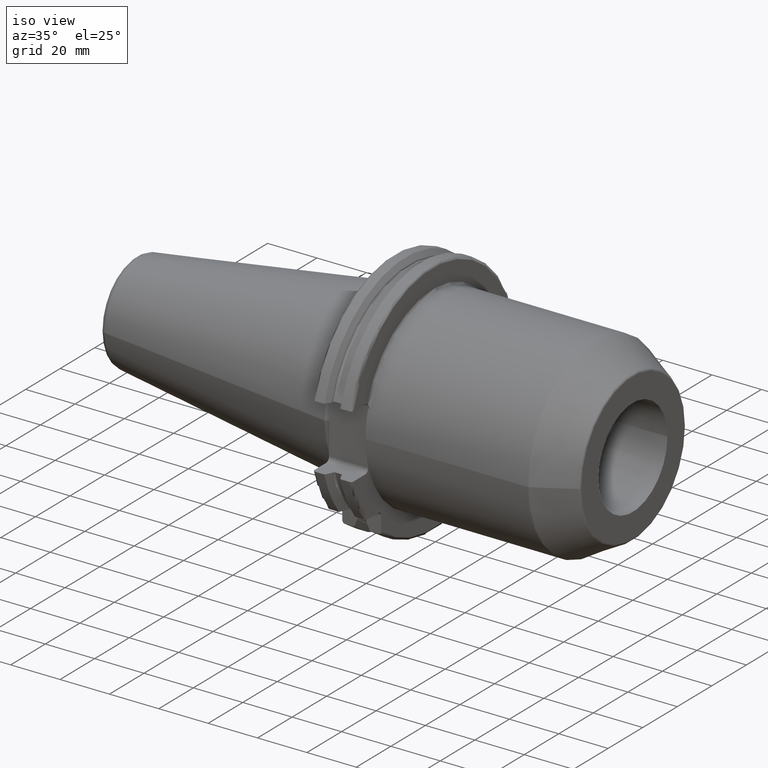
[diagram: clean part render]
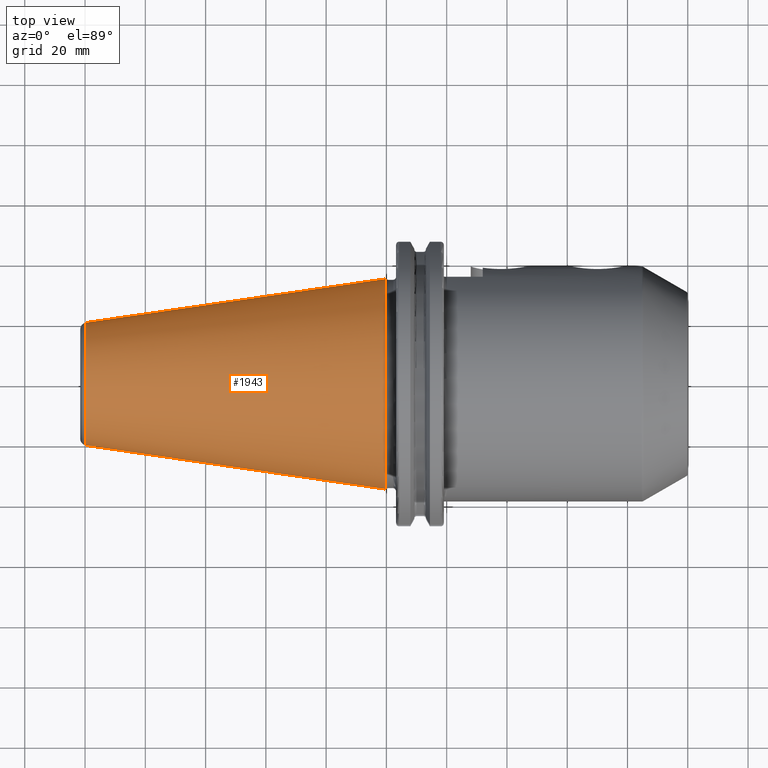
[diagram: tour spotlight — one face highlighted and labeled with its STEP entity id]
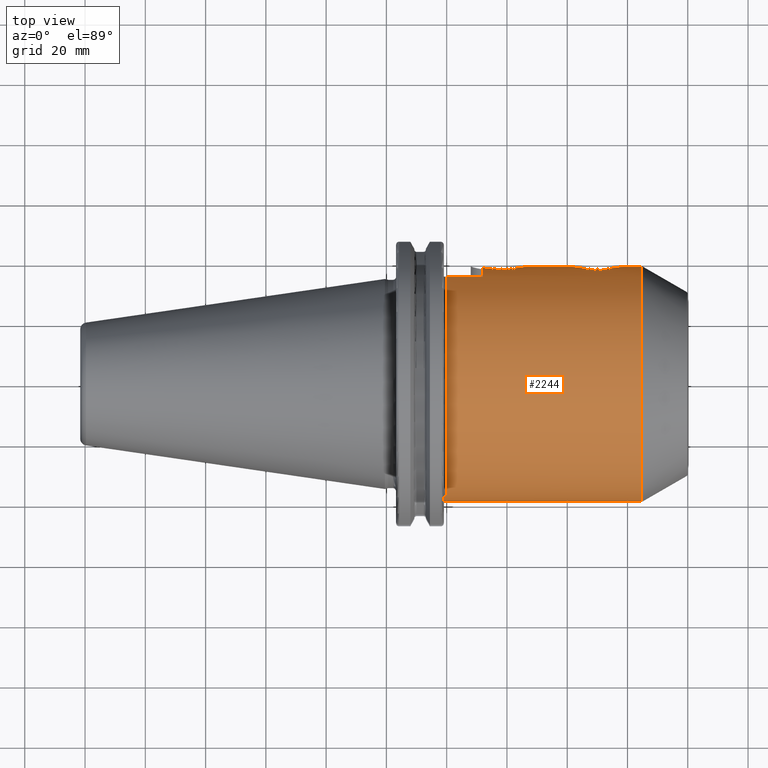
[diagram: tour spotlight — one face highlighted and labeled with its STEP entity id]
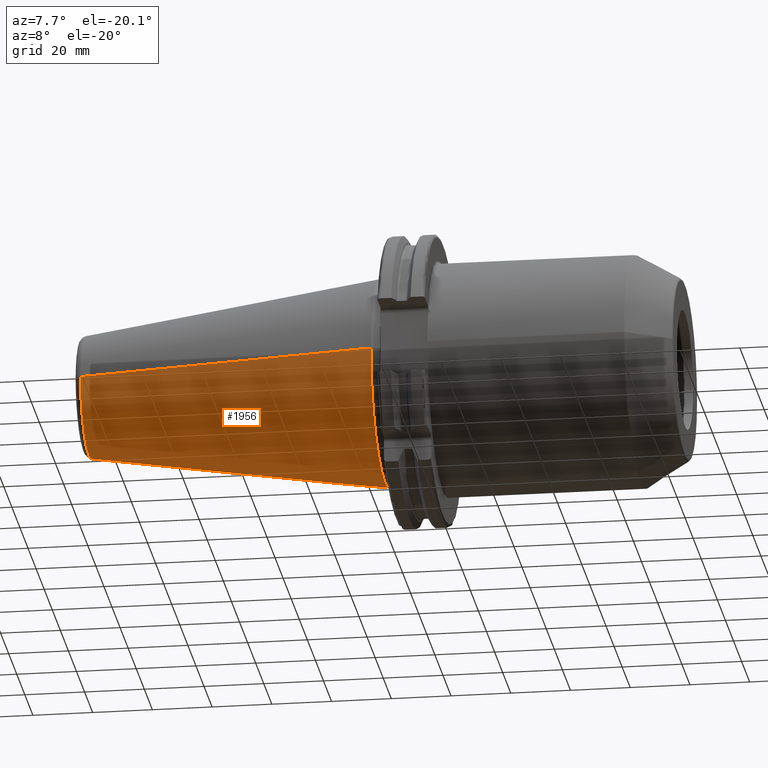
[diagram: tour spotlight — one face highlighted and labeled with its STEP entity id]
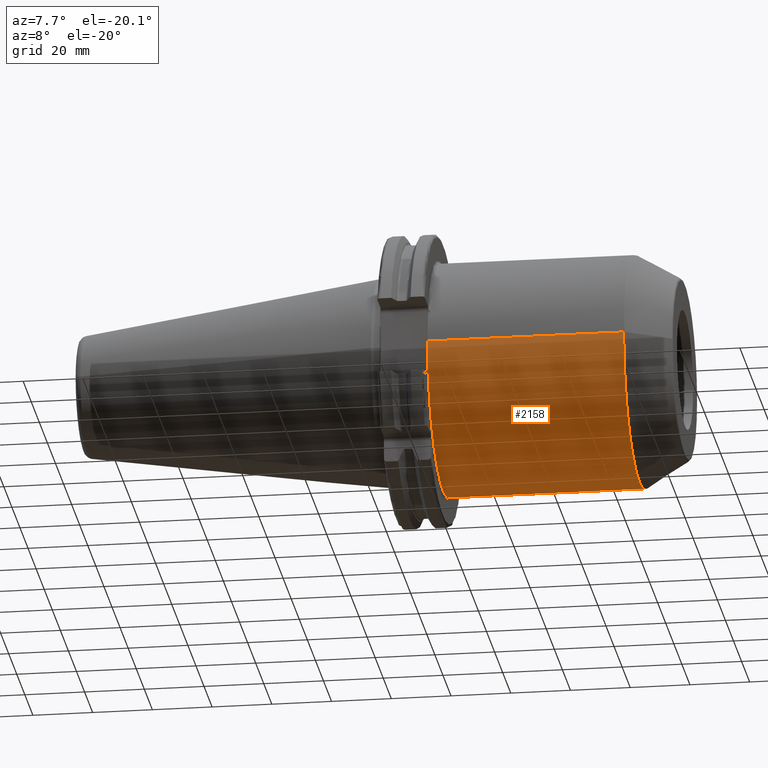
[diagram: tour spotlight — one face highlighted and labeled with its STEP entity id]
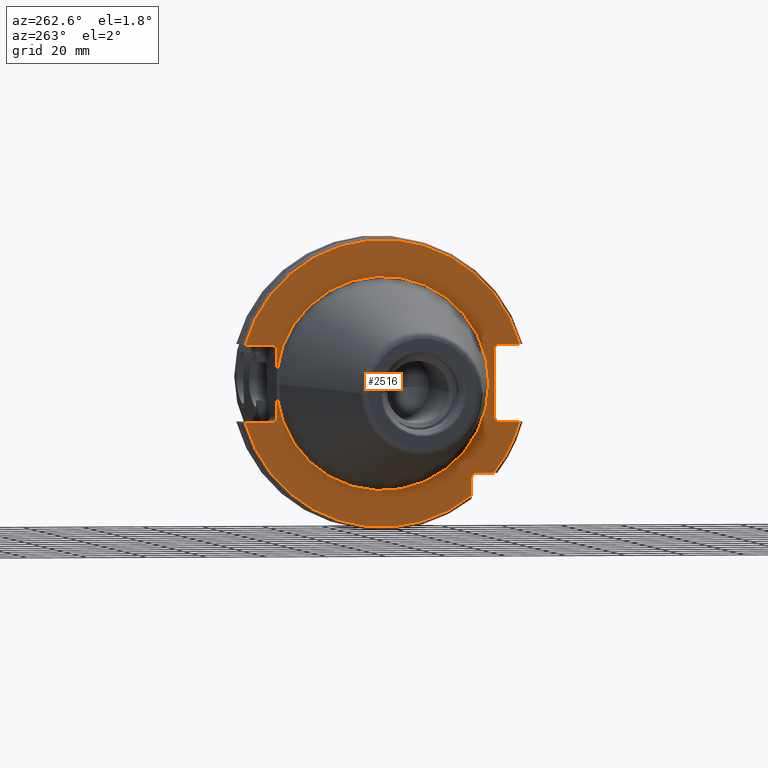
[diagram: tour spotlight — one face highlighted and labeled with its STEP entity id]
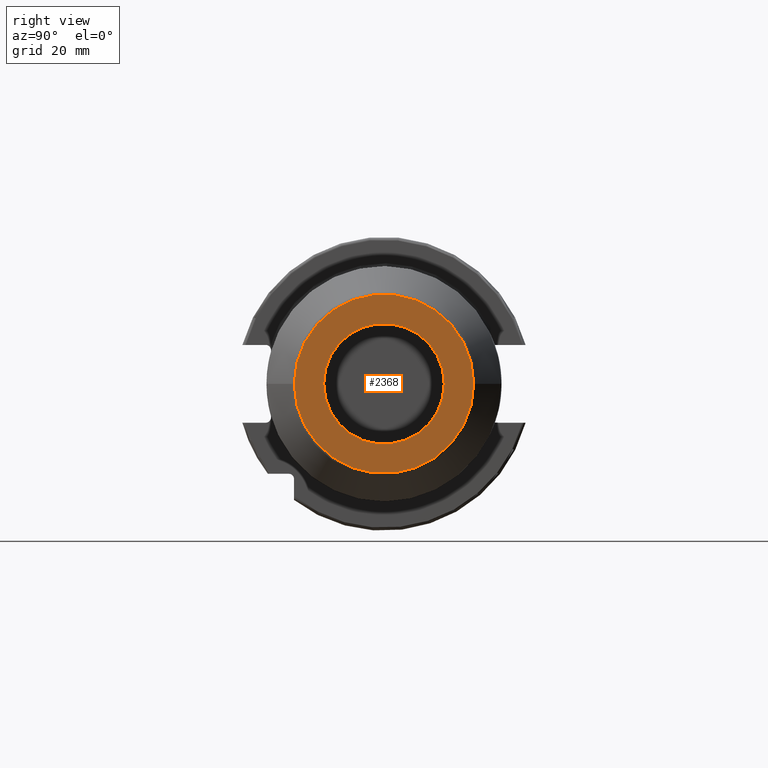
[diagram: tour spotlight — one face highlighted and labeled with its STEP entity id]
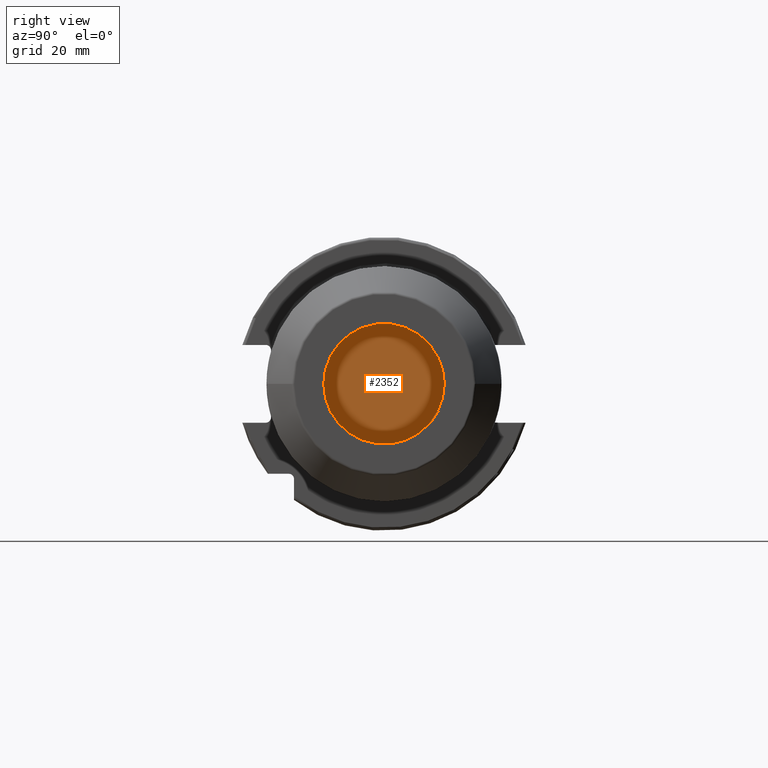
[diagram: tour spotlight — one face highlighted and labeled with its STEP entity id]
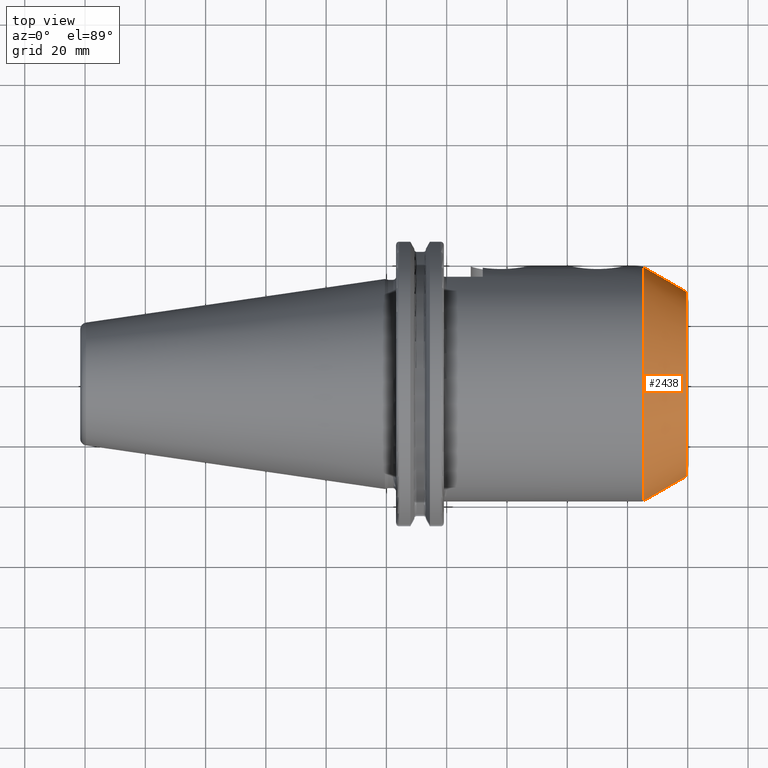
[diagram: tour spotlight — one face highlighted and labeled with its STEP entity id]
A machine part: a face-by-face anatomy tour. The part has 110 B-rep faces; the first image is the clean iso view, then the 8 largest visible faces are spotlighted one at a time (largest first), each with its STEP entity span.

Face 1 — top view, entity #1943. In plain terms, the highlighted conical surface has half-angle 8.298 deg.
Definition (entity closure, byte-faithful):
#37=CARTESIAN_POINT('',(-9.967471700563E1,0.E0,0.E0));
#38=DIRECTION('',(1.E0,0.E0,0.E0));
#39=DIRECTION('',(0.E0,1.E0,0.E0));
#40=AXIS2_PLACEMENT_3D('',#37,#38,#39);
#42=CARTESIAN_POINT('',(-4.896823332305E-1,0.E0,0.E0));
#43=DIRECTION('',(1.E0,0.E0,0.E0));
#44=DIRECTION('',(0.E0,1.E0,0.E0));
#45=AXIS2_PLACEMENT_3D('',#42,#43,#44);
#47=DIRECTION('',(-9.895312636440E-1,-1.443186691705E-1,0.E0));
#48=VECTOR('',#47,1.002343617797E2);
#49=CARTESIAN_POINT('',(-4.896823332305E-1,3.485358204157E1,0.E0));
#50=LINE('',#49,#48);
#51=DIRECTION('',(-9.895312636440E-1,1.443186691705E-1,0.E0));
#52=VECTOR('',#51,1.002343617797E2);
#53=CARTESIAN_POINT('',(-4.896823332305E-1,-3.485358204157E1,0.E0));
#54=LINE('',#53,#52);
#1587=CARTESIAN_POINT('',(-9.967471700563E1,2.038789234437E1,0.E0));
#1589=VERTEX_POINT('',#1587);
#1591=CARTESIAN_POINT('',(-9.967471700563E1,-2.038789234437E1,0.E0));
#1593=VERTEX_POINT('',#1591);
#1655=CARTESIAN_POINT('',(-4.896823332305E-1,3.485358204157E1,0.E0));
#1656=VERTEX_POINT('',#1655);
#1657=CARTESIAN_POINT('',(-4.896823332305E-1,-3.485358204157E1,0.E0));
#1658=VERTEX_POINT('',#1657);
#1929=CARTESIAN_POINT('',(-5.008219966943E1,0.E0,0.E0));
#1930=DIRECTION('',(1.E0,0.E0,0.E0));
#1931=DIRECTION('',(0.E0,-1.E0,0.E0));
#1932=AXIS2_PLACEMENT_3D('',#1929,#1930,#1931);
#1933=CONICAL_SURFACE('',#1932,2.762073719297E1,8.297826828206E0);
#1935=ORIENTED_EDGE('',*,*,#1934,.F.);
#1937=ORIENTED_EDGE('',*,*,#1936,.T.);
#1939=ORIENTED_EDGE('',*,*,#1938,.T.);
#1940=ORIENTED_EDGE('',*,*,#1922,.F.);
#1941=EDGE_LOOP('',(#1935,#1937,#1939,#1940));
#1942=FACE_OUTER_BOUND('',#1941,.F.);
#1943=ADVANCED_FACE('',(#1942),#1933,.T.);
#41=CIRCLE('',#40,2.038789234437E1);
#46=CIRCLE('',#45,3.485358204157E1);
#1922=EDGE_CURVE('',#1589,#1593,#41,.T.);
#1934=EDGE_CURVE('',#1656,#1589,#50,.T.);
#1936=EDGE_CURVE('',#1656,#1658,#46,.T.);
#1938=EDGE_CURVE('',#1658,#1593,#54,.T.);

Face 2 — top view, entity #2244. In plain terms, the highlighted cylindrical surface (partial cylindrical patch) has radius 39 mm, axis along (1, 0, 0).
Definition (entity closure, byte-faithful):
#193=DIRECTION('',(-1.E0,0.E0,-2.830000374006E-14));
#194=VECTOR('',#193,6.568205080757E1);
#195=CARTESIAN_POINT('',(8.473205080757E1,-3.9E1,1.855618201831E-12));
#196=LINE('',#195,#194);
#202=DIRECTION('',(-1.E0,0.E0,3.122446737488E-13));
#203=VECTOR('',#202,5.982050807569E0);
#204=CARTESIAN_POINT('',(8.473205080757E1,3.9E1,-1.865471972053E-12));
#205=LINE('',#204,#203);
#231=DIRECTION('',(-1.E0,0.E0,0.E0));
#232=VECTOR('',#231,1.45E1);
#233=CARTESIAN_POINT('',(6.125E1,3.9E1,0.E0));
#234=LINE('',#233,#232);
#260=CARTESIAN_POINT('',(1.905E1,0.E0,0.E0));
#261=DIRECTION('',(1.E0,0.E0,0.E0));
#262=DIRECTION('',(0.E0,-9.615384615385E-1,2.746703241747E-1));
#263=AXIS2_PLACEMENT_3D('',#260,#261,#262);
#308=CARTESIAN_POINT('',(2.005E1,0.E0,0.E0));
#309=DIRECTION('',(1.E0,0.E0,0.E0));
#310=DIRECTION('',(0.E0,9.051282051282E-1,4.251387212210E-1));
#311=AXIS2_PLACEMENT_3D('',#308,#309,#310);
#338=DIRECTION('',(1.E0,0.E0,0.E0));
#339=VECTOR('',#338,1.19E1);
#340=CARTESIAN_POINT('',(2.005E1,3.53E1,1.658041012762E1));
#341=LINE('',#340,#339);
#342=CARTESIAN_POINT('',(3.195E1,0.E0,0.E0));
#343=DIRECTION('',(1.E0,0.E0,0.E0));
#344=DIRECTION('',(0.E0,9.867764745123E-1,1.620869808131E-1));
#345=AXIS2_PLACEMENT_3D('',#342,#343,#344);
#347=CARTESIAN_POINT('',(4.675E1,3.9E1,0.E0));
#348=CARTESIAN_POINT('',(4.675E1,3.9E1,4.195203303763E-1));
#349=CARTESIAN_POINT('',(4.669072831957E1,3.898663207830E1,1.257216237806E0));
#350=CARTESIAN_POINT('',(4.641025405605E1,3.892462711585E1,2.530637425937E0));
#351=CARTESIAN_POINT('',(4.594002643759E1,3.882503259344E1,3.752948368812E0));
#352=CARTESIAN_POINT('',(4.530037165310E1,3.869844948063E1,4.880317697019E0));
#353=CARTESIAN_POINT('',(4.451182050552E1,3.855645570224E1,5.891453636498E0));
#354=CARTESIAN_POINT('',(4.357852745332E1,3.840881565340E1,6.781732051473E0));
#355=CARTESIAN_POINT('',(4.253367666590E1,3.827002119458E1,7.520323388868E0));
#356=CARTESIAN_POINT('',(4.138887818319E1,3.815054411371E1,8.100576438182E0));
#357=CARTESIAN_POINT('',(4.018744035471E1,3.806205429675E1,8.503688969993E0));
#358=CARTESIAN_POINT('',(3.893769303387E1,3.801039016920E1,8.730115116156E0));
#359=CARTESIAN_POINT('',(3.767980507301E1,3.800011608172E1,8.774393444081E0));
#360=CARTESIAN_POINT('',(3.641960891423E1,3.803179451215E1,8.637063401868E0));
#361=CARTESIAN_POINT('',(3.519453267358E1,3.810285306844E1,8.320357408248E0));
#362=CARTESIAN_POINT('',(3.401671878898E1,3.820828436798E1,7.825809082182E0));
#363=CARTESIAN_POINT('',(3.291989094079E1,3.833912919198E1,7.162295927853E0));
#364=CARTESIAN_POINT('',(3.226173266914E1,3.843527593692E1,6.619741503456E0));
#365=CARTESIAN_POINT('',(3.195E1,3.848428250598E1,6.321392251712E0));
#367=CARTESIAN_POINT('',(7.875E1,3.9E1,0.E0));
#368=CARTESIAN_POINT('',(7.875E1,3.9E1,4.307987758173E-1));
#369=CARTESIAN_POINT('',(7.868756165157E1,3.898591375194E1,1.290479896660E0));
#370=CARTESIAN_POINT('',(7.839189700200E1,3.892060323424E1,2.596915839438E0));
#371=CARTESIAN_POINT('',(7.789693924462E1,3.881610966920E1,3.846610481042E0));
#372=CARTESIAN_POINT('',(7.722531107132E1,3.868414610135E1,4.993614936457E0));
#373=CARTESIAN_POINT('',(7.639840573637E1,3.853714914185E1,6.016903493916E0));
#374=CARTESIAN_POINT('',(7.542098837462E1,3.838585879856E1,6.910403459772E0));
#375=CARTESIAN_POINT('',(7.433076734093E1,3.824605497083E1,7.640867960014E0));
#376=CARTESIAN_POINT('',(7.313923995752E1,3.812871238165E1,8.202211445714E0));
#377=CARTESIAN_POINT('',(7.189587478834E1,3.804594352635E1,8.575038142605E0));
#378=CARTESIAN_POINT('',(7.060485403576E1,3.800322555769E1,8.761030657890E0));
#379=CARTESIAN_POINT('',(6.931509916844E1,3.800458781407E1,8.755167553016E0));
#380=CARTESIAN_POINT('',(6.802521631825E1,3.804998708922E1,8.557211410968E0));
#381=CARTESIAN_POINT('',(6.678557710952E1,3.813502155346E1,8.173062347229E0));
#382=CARTESIAN_POINT('',(6.559854020064E1,3.825418434227E1,7.600367682525E0));
#383=CARTESIAN_POINT('',(6.451531221778E1,3.839496919108E1,6.860030993755E0));
#384=CARTESIAN_POINT('',(6.354452776314E1,3.854672549303E1,5.955766290406E0));
#385=CARTESIAN_POINT('',(6.272791564567E1,3.869299364280E1,4.925005576783E0));
#386=CARTESIAN_POINT('',(6.207312668505E1,3.882231371360E1,3.781428020194E0));
#387=CARTESIAN_POINT('',(6.160049400271E1,3.892229753799E1,2.565038711461E0));
#388=CARTESIAN_POINT('',(6.131315764846E1,3.898575264777E1,1.289144473308E0));
#389=CARTESIAN_POINT('',(6.125E1,3.9E1,4.324026156362E-1));
#390=CARTESIAN_POINT('',(6.125E1,3.9E1,0.E0));
#392=CARTESIAN_POINT('',(8.473205080757E1,0.E0,0.E0));
#393=DIRECTION('',(-1.E0,0.E0,0.E0));
#394=DIRECTION('',(0.E0,-1.E0,0.E0));
#395=AXIS2_PLACEMENT_3D('',#392,#393,#394);
#397=DIRECTION('',(-1.E0,0.E0,0.E0));
#398=VECTOR('',#397,1.E0);
#399=CARTESIAN_POINT('',(2.005E1,-3.75E1,1.071214264281E1));
#400=LINE('',#399,#398);
#1799=CARTESIAN_POINT('',(7.875E1,3.9E1,0.E0));
#1801=VERTEX_POINT('',#1799);
#1803=CARTESIAN_POINT('',(6.125E1,3.9E1,0.E0));
#1805=VERTEX_POINT('',#1803);
#1808=CARTESIAN_POINT('',(8.473205080757E1,3.9E1,0.E0));
#1809=CARTESIAN_POINT('',(8.473205080757E1,-3.9E1,0.E0));
#1810=VERTEX_POINT('',#1808);
#1811=VERTEX_POINT('',#1809);
#1826=CARTESIAN_POINT('',(4.675E1,3.9E1,0.E0));
#1827=VERTEX_POINT('',#1826);
#1830=CARTESIAN_POINT('',(1.905E1,-3.9E1,0.E0));
#1831=VERTEX_POINT('',#1830);
#1832=CARTESIAN_POINT('',(2.005E1,-3.75E1,1.071214264281E1));
#1833=CARTESIAN_POINT('',(1.905E1,-3.75E1,1.071214264281E1));
#1834=VERTEX_POINT('',#1832);
#1835=VERTEX_POINT('',#1833);
#1862=CARTESIAN_POINT('',(2.005E1,3.53E1,1.658041012762E1));
#1863=CARTESIAN_POINT('',(3.195E1,3.53E1,1.658041012762E1));
#1864=VERTEX_POINT('',#1862);
#1865=VERTEX_POINT('',#1863);
#1866=CARTESIAN_POINT('',(3.195E1,3.848428250598E1,6.321392251712E0));
#1867=VERTEX_POINT('',#1866);
#2222=CARTESIAN_POINT('',(1.50025E1,0.E0,0.E0));
#2223=DIRECTION('',(1.E0,0.E0,0.E0));
#2224=DIRECTION('',(0.E0,-1.E0,0.E0));
#2225=AXIS2_PLACEMENT_3D('',#2222,#2223,#2224);
#2226=CYLINDRICAL_SURFACE('',#2225,3.9E1);
#2227=ORIENTED_EDGE('',*,*,#2049,.T.);
#2229=ORIENTED_EDGE('',*,*,#2228,.F.);
#2231=ORIENTED_EDGE('',*,*,#2230,.F.);
#2232=ORIENTED_EDGE('',*,*,#2150,.F.);
#2234=ORIENTED_EDGE('',*,*,#2233,.F.);
#2235=ORIENTED_EDGE('',*,*,#2146,.F.);
#2237=ORIENTED_EDGE('',*,*,#2236,.F.);
#2238=ORIENTED_EDGE('',*,*,#2142,.T.);
#2239=ORIENTED_EDGE('',*,*,#2166,.F.);
#2240=ORIENTED_EDGE('',*,*,#2181,.F.);
#2241=ORIENTED_EDGE('',*,*,#2214,.F.);
#2242=EDGE_LOOP('',(#2227,#2229,#2231,#2232,#2234,#2235,#2237,#2238,#2239,#2240,
#2241));
#2243=FACE_OUTER_BOUND('',#2242,.F.);
#2244=ADVANCED_FACE('',(#2243),#2226,.T.);
#264=CIRCLE('',#263,3.9E1);
#312=CIRCLE('',#311,3.9E1);
#346=CIRCLE('',#345,3.9E1);
#366=B_SPLINE_CURVE_WITH_KNOTS('',3,(#347,#348,#349,#350,#351,#352,#353,#354,
#355,#356,#357,#358,#359,#360,#361,#362,#363,#364,#365),.UNSPECIFIED.,.F.,.F.,
(4,1,1,1,1,1,1,1,1,1,1,1,1,1,1,1,4),(0.E0,6.25E-2,1.25E-1,1.875E-1,2.5E-1,
3.125E-1,3.75E-1,4.375E-1,5.E-1,5.625E-1,6.25E-1,6.875E-1,7.5E-1,8.125E-1,
8.75E-1,9.375E-1,1.E0),.UNSPECIFIED.);
#391=B_SPLINE_CURVE_WITH_KNOTS('',3,(#367,#368,#369,#370,#371,#372,#373,#374,
#375,#376,#377,#378,#379,#380,#381,#382,#383,#384,#385,#386,#387,#388,#389,
#390),.UNSPECIFIED.,.F.,.F.,(4,1,1,1,1,1,1,1,1,1,1,1,1,1,1,1,1,1,1,1,1,4),(0.E0,
4.761904761905E-2,9.523809523810E-2,1.428571428571E-1,1.904761904762E-1,
2.380952380952E-1,2.857142857143E-1,3.333333333333E-1,3.809523809524E-1,
4.285714285714E-1,4.761904761905E-1,5.238095238095E-1,5.714285714286E-1,
6.190476190476E-1,6.666666666667E-1,7.142857142857E-1,7.619047619048E-1,
8.095238095238E-1,8.571428571429E-1,9.047619047619E-1,9.523809523810E-1,1.E0),
.UNSPECIFIED.);
#396=CIRCLE('',#395,3.9E1);
#2049=EDGE_CURVE('',#1864,#1865,#341,.T.);
#2142=EDGE_CURVE('',#1811,#1831,#196,.T.);
#2146=EDGE_CURVE('',#1810,#1801,#205,.T.);
#2150=EDGE_CURVE('',#1805,#1827,#234,.T.);
#2166=EDGE_CURVE('',#1835,#1831,#264,.T.);
#2181=EDGE_CURVE('',#1834,#1835,#400,.T.);
#2214=EDGE_CURVE('',#1864,#1834,#312,.T.);
#2228=EDGE_CURVE('',#1867,#1865,#346,.T.);
#2230=EDGE_CURVE('',#1827,#1867,#366,.T.);
#2233=EDGE_CURVE('',#1801,#1805,#391,.T.);
#2236=EDGE_CURVE('',#1811,#1810,#396,.T.);

Face 3 — auxiliary view, entity #1956. In plain terms, the highlighted conical surface has half-angle 8.298 deg.
Definition (entity closure, byte-faithful):
#32=CARTESIAN_POINT('',(-9.967471700563E1,0.E0,0.E0));
#33=DIRECTION('',(-1.E0,0.E0,0.E0));
#34=DIRECTION('',(0.E0,1.E0,0.E0));
#35=AXIS2_PLACEMENT_3D('',#32,#33,#34);
#47=DIRECTION('',(-9.895312636440E-1,-1.443186691705E-1,0.E0));
#48=VECTOR('',#47,1.002343617797E2);
#49=CARTESIAN_POINT('',(-4.896823332305E-1,3.485358204157E1,0.E0));
#50=LINE('',#49,#48);
#51=DIRECTION('',(-9.895312636440E-1,1.443186691705E-1,0.E0));
#52=VECTOR('',#51,1.002343617797E2);
#53=CARTESIAN_POINT('',(-4.896823332305E-1,-3.485358204157E1,0.E0));
#54=LINE('',#53,#52);
#55=CARTESIAN_POINT('',(-4.896823332305E-1,0.E0,0.E0));
#56=DIRECTION('',(-1.E0,0.E0,0.E0));
#57=DIRECTION('',(0.E0,1.E0,0.E0));
#58=AXIS2_PLACEMENT_3D('',#55,#56,#57);
#1587=CARTESIAN_POINT('',(-9.967471700563E1,2.038789234437E1,0.E0));
#1589=VERTEX_POINT('',#1587);
#1591=CARTESIAN_POINT('',(-9.967471700563E1,-2.038789234437E1,0.E0));
#1593=VERTEX_POINT('',#1591);
#1655=CARTESIAN_POINT('',(-4.896823332305E-1,3.485358204157E1,0.E0));
#1656=VERTEX_POINT('',#1655);
#1657=CARTESIAN_POINT('',(-4.896823332305E-1,-3.485358204157E1,0.E0));
#1658=VERTEX_POINT('',#1657);
#1944=CARTESIAN_POINT('',(-5.008219966943E1,0.E0,0.E0));
#1945=DIRECTION('',(1.E0,0.E0,0.E0));
#1946=DIRECTION('',(0.E0,-1.E0,0.E0));
#1947=AXIS2_PLACEMENT_3D('',#1944,#1945,#1946);
#1948=CONICAL_SURFACE('',#1947,2.762073719297E1,8.297826828206E0);
#1949=ORIENTED_EDGE('',*,*,#1934,.T.);
#1950=ORIENTED_EDGE('',*,*,#1911,.T.);
#1951=ORIENTED_EDGE('',*,*,#1938,.F.);
#1953=ORIENTED_EDGE('',*,*,#1952,.F.);
#1954=EDGE_LOOP('',(#1949,#1950,#1951,#1953));
#1955=FACE_OUTER_BOUND('',#1954,.F.);
#1956=ADVANCED_FACE('',(#1955),#1948,.T.);
#36=CIRCLE('',#35,2.038789234437E1);
#59=CIRCLE('',#58,3.485358204157E1);
#1911=EDGE_CURVE('',#1589,#1593,#36,.T.);
#1934=EDGE_CURVE('',#1656,#1589,#50,.T.);
#1938=EDGE_CURVE('',#1658,#1593,#54,.T.);
#1952=EDGE_CURVE('',#1656,#1658,#59,.T.);

Face 4 — auxiliary view, entity #2158. In plain terms, the highlighted cylindrical surface (partial cylindrical patch) has radius 39 mm, axis along (1, 0, 0).
Definition (entity closure, byte-faithful):
#151=CARTESIAN_POINT('',(1.905E1,0.E0,0.E0));
#152=DIRECTION('',(1.E0,0.E0,0.E0));
#153=DIRECTION('',(0.E0,-9.615384615385E-1,-2.746703241747E-1));
#154=AXIS2_PLACEMENT_3D('',#151,#152,#153);
#189=DIRECTION('',(1.E0,0.E0,0.E0));
#190=VECTOR('',#189,1.29E1);
#191=CARTESIAN_POINT('',(1.905E1,3.53E1,-1.658041012762E1));
#192=LINE('',#191,#190);
#193=DIRECTION('',(-1.E0,0.E0,-2.830000374006E-14));
#194=VECTOR('',#193,6.568205080757E1);
#195=CARTESIAN_POINT('',(8.473205080757E1,-3.9E1,1.855618201831E-12));
#196=LINE('',#195,#194);
#197=CARTESIAN_POINT('',(8.473205080757E1,0.E0,0.E0));
#198=DIRECTION('',(-1.E0,0.E0,0.E0));
#199=DIRECTION('',(0.E0,1.E0,0.E0));
#200=AXIS2_PLACEMENT_3D('',#197,#198,#199);
#202=DIRECTION('',(-1.E0,0.E0,3.122446737488E-13));
#203=VECTOR('',#202,5.982050807569E0);
#204=CARTESIAN_POINT('',(8.473205080757E1,3.9E1,-1.865471972053E-12));
#205=LINE('',#204,#203);
#206=CARTESIAN_POINT('',(6.125E1,3.9E1,0.E0));
#207=CARTESIAN_POINT('',(6.125E1,3.9E1,-4.307253571597E-1));
#208=CARTESIAN_POINT('',(6.131242247125E1,3.898591746104E1,-1.290269596297E0));
#209=CARTESIAN_POINT('',(6.160795734212E1,3.892063492806E1,-2.596415428841E0));
#210=CARTESIAN_POINT('',(6.210281106642E1,3.881616137610E1,-3.846082116360E0));
#211=CARTESIAN_POINT('',(6.277426171733E1,3.868422616905E1,-4.992999709364E0));
#212=CARTESIAN_POINT('',(6.360121323696E1,3.853721261489E1,-6.016505488359E0));
#213=CARTESIAN_POINT('',(6.457853623415E1,3.838592619065E1,-6.910030802657E0));
#214=CARTESIAN_POINT('',(6.566880727233E1,3.824610303012E1,-7.640631139414E0));
#215=CARTESIAN_POINT('',(6.686029441946E1,3.812875080034E1,-8.202033822381E0));
#216=CARTESIAN_POINT('',(6.810370710702E1,3.804596395237E1,-8.574948586126E0));
#217=CARTESIAN_POINT('',(6.939473686162E1,3.800323182242E1,-8.761003602247E0));
#218=CARTESIAN_POINT('',(7.068454193111E1,3.800458075947E1,-8.755197987365E0));
#219=CARTESIAN_POINT('',(7.197446274427E1,3.804997003132E1,-8.557286725438E0));
#220=CARTESIAN_POINT('',(7.321414753608E1,3.813499774309E1,-8.173172970403E0));
#221=CARTESIAN_POINT('',(7.440124106920E1,3.825415871731E1,-7.600495997827E0));
#222=CARTESIAN_POINT('',(7.548450868928E1,3.839494316592E1,-6.860176738829E0));
#223=CARTESIAN_POINT('',(7.645535163017E1,3.854670493640E1,-5.955899505337E0));
#224=CARTESIAN_POINT('',(7.727199534630E1,3.869297670110E1,-4.925140094291E0));
#225=CARTESIAN_POINT('',(7.792682861843E1,3.882230441244E1,-3.781526589612E0));
#226=CARTESIAN_POINT('',(7.839948319339E1,3.892229256899E1,-2.565118697141E0));
#227=CARTESIAN_POINT('',(7.868683910477E1,3.898575189992E1,-1.289181731877E0));
#228=CARTESIAN_POINT('',(7.875E1,3.9E1,-4.324154593711E-1));
#229=CARTESIAN_POINT('',(7.875E1,3.9E1,0.E0));
#231=DIRECTION('',(-1.E0,0.E0,0.E0));
#232=VECTOR('',#231,1.45E1);
#233=CARTESIAN_POINT('',(6.125E1,3.9E1,0.E0));
#234=LINE('',#233,#232);
#235=CARTESIAN_POINT('',(3.195E1,3.848428250598E1,-6.321392251712E0));
#236=CARTESIAN_POINT('',(3.226271971729E1,3.843512076601E1,-6.620686175310E0));
#237=CARTESIAN_POINT('',(3.292319299019E1,3.833865702033E1,-7.164898112166E0));
#238=CARTESIAN_POINT('',(3.402461978997E1,3.820740631844E1,-7.830126823558E0));
#239=CARTESIAN_POINT('',(3.520842931601E1,3.810177261127E1,-8.325297682619E0));
#240=CARTESIAN_POINT('',(3.643875491707E1,3.803094302618E1,-8.640791737996E0));
#241=CARTESIAN_POINT('',(3.770461133620E1,3.799985943127E1,-8.775496710013E0));
#242=CARTESIAN_POINT('',(3.896699671155E1,3.801107047283E1,-8.727179718207E0));
#243=CARTESIAN_POINT('',(4.022169596968E1,3.806399935791E1,-8.495053818706E0));
#244=CARTESIAN_POINT('',(4.142553033931E1,3.815379388090E1,-8.085418487176E0));
#245=CARTESIAN_POINT('',(4.257283106261E1,3.827466892814E1,-7.496877568792E0));
#246=CARTESIAN_POINT('',(4.361760576516E1,3.841451262840E1,-6.749802938275E0));
#247=CARTESIAN_POINT('',(4.455088040403E1,3.856308502036E1,-5.848478160762E0));
#248=CARTESIAN_POINT('',(4.533453215362E1,3.870495990701E1,-4.828906945243E0));
#249=CARTESIAN_POINT('',(4.596202460035E1,3.882961409455E1,-3.703468437778E0));
#250=CARTESIAN_POINT('',(4.641456990158E1,3.892559850408E1,-2.510244124082E0));
#251=CARTESIAN_POINT('',(4.668956681996E1,3.898637044362E1,-1.261116610956E0));
#252=CARTESIAN_POINT('',(4.675E1,3.9E1,-4.228668085446E-1));
#253=CARTESIAN_POINT('',(4.675E1,3.9E1,0.E0));
#255=CARTESIAN_POINT('',(3.195E1,0.E0,0.E0));
#256=DIRECTION('',(1.E0,0.E0,0.E0));
#257=DIRECTION('',(0.E0,9.051282051282E-1,-4.251387212210E-1));
#258=AXIS2_PLACEMENT_3D('',#255,#256,#257);
#265=CARTESIAN_POINT('',(1.905E1,0.E0,0.E0));
#266=DIRECTION('',(-1.E0,0.E0,0.E0));
#267=DIRECTION('',(0.E0,-9.615384615385E-1,-2.746703241747E-1));
#268=AXIS2_PLACEMENT_3D('',#265,#266,#267);
#1799=CARTESIAN_POINT('',(7.875E1,3.9E1,0.E0));
#1801=VERTEX_POINT('',#1799);
#1803=CARTESIAN_POINT('',(6.125E1,3.9E1,0.E0));
#1805=VERTEX_POINT('',#1803);
#1808=CARTESIAN_POINT('',(8.473205080757E1,3.9E1,0.E0));
#1809=CARTESIAN_POINT('',(8.473205080757E1,-3.9E1,0.E0));
#1810=VERTEX_POINT('',#1808);
#1811=VERTEX_POINT('',#1809);
#1826=CARTESIAN_POINT('',(4.675E1,3.9E1,0.E0));
#1827=VERTEX_POINT('',#1826);
#1828=CARTESIAN_POINT('',(1.905E1,-3.75E1,-1.071214264281E1));
#1829=VERTEX_POINT('',#1828);
#1830=CARTESIAN_POINT('',(1.905E1,-3.9E1,0.E0));
#1831=VERTEX_POINT('',#1830);
#1868=CARTESIAN_POINT('',(1.905E1,3.53E1,-1.658041012762E1));
#1869=CARTESIAN_POINT('',(3.195E1,3.53E1,-1.658041012762E1));
#1870=VERTEX_POINT('',#1868);
#1871=VERTEX_POINT('',#1869);
#1872=CARTESIAN_POINT('',(3.195E1,3.848428250598E1,-6.321392251712E0));
#1873=VERTEX_POINT('',#1872);
#2133=CARTESIAN_POINT('',(1.50025E1,0.E0,0.E0));
#2134=DIRECTION('',(1.E0,0.E0,0.E0));
#2135=DIRECTION('',(0.E0,-1.E0,0.E0));
#2136=AXIS2_PLACEMENT_3D('',#2133,#2134,#2135);
#2137=CYLINDRICAL_SURFACE('',#2136,3.9E1);
#2138=ORIENTED_EDGE('',*,*,#2039,.F.);
#2139=ORIENTED_EDGE('',*,*,#2087,.F.);
#2141=ORIENTED_EDGE('',*,*,#2140,.T.);
#2143=ORIENTED_EDGE('',*,*,#2142,.F.);
#2145=ORIENTED_EDGE('',*,*,#2144,.F.);
#2147=ORIENTED_EDGE('',*,*,#2146,.T.);
#2149=ORIENTED_EDGE('',*,*,#2148,.F.);
#2151=ORIENTED_EDGE('',*,*,#2150,.T.);
#2153=ORIENTED_EDGE('',*,*,#2152,.F.);
#2155=ORIENTED_EDGE('',*,*,#2154,.F.);
#2156=EDGE_LOOP('',(#2138,#2139,#2141,#2143,#2145,#2147,#2149,#2151,#2153,
#2155));
#2157=FACE_OUTER_BOUND('',#2156,.F.);
#2158=ADVANCED_FACE('',(#2157),#2137,.T.);
#155=CIRCLE('',#154,3.9E1);
#201=CIRCLE('',#200,3.9E1);
#230=B_SPLINE_CURVE_WITH_KNOTS('',3,(#206,#207,#208,#209,#210,#211,#212,#213,
#214,#215,#216,#217,#218,#219,#220,#221,#222,#223,#224,#225,#226,#227,#228,
#229),.UNSPECIFIED.,.F.,.F.,(4,1,1,1,1,1,1,1,1,1,1,1,1,1,1,1,1,1,1,1,1,4),(0.E0,
4.761904761905E-2,9.523809523810E-2,1.428571428571E-1,1.904761904762E-1,
2.380952380952E-1,2.857142857143E-1,3.333333333333E-1,3.809523809524E-1,
4.285714285714E-1,4.761904761905E-1,5.238095238095E-1,5.714285714286E-1,
6.190476190476E-1,6.666666666667E-1,7.142857142857E-1,7.619047619048E-1,
8.095238095238E-1,8.571428571429E-1,9.047619047619E-1,9.523809523810E-1,1.E0),
.UNSPECIFIED.);
#254=B_SPLINE_CURVE_WITH_KNOTS('',3,(#235,#236,#237,#238,#239,#240,#241,#242,
#243,#244,#245,#246,#247,#248,#249,#250,#251,#252,#253),.UNSPECIFIED.,.F.,.F.,
(4,1,1,1,1,1,1,1,1,1,1,1,1,1,1,1,4),(0.E0,6.25E-2,1.25E-1,1.875E-1,2.5E-1,
3.125E-1,3.75E-1,4.375E-1,5.E-1,5.625E-1,6.25E-1,6.875E-1,7.5E-1,8.125E-1,
8.75E-1,9.375E-1,1.E0),.UNSPECIFIED.);
#259=CIRCLE('',#258,3.9E1);
#269=CIRCLE('',#268,3.9E1);
#2039=EDGE_CURVE('',#1870,#1871,#192,.T.);
#2087=EDGE_CURVE('',#1829,#1870,#155,.T.);
#2140=EDGE_CURVE('',#1829,#1831,#269,.T.);
#2142=EDGE_CURVE('',#1811,#1831,#196,.T.);
#2144=EDGE_CURVE('',#1810,#1811,#201,.T.);
#2146=EDGE_CURVE('',#1810,#1801,#205,.T.);
#2148=EDGE_CURVE('',#1805,#1801,#230,.T.);
#2150=EDGE_CURVE('',#1805,#1827,#234,.T.);
#2152=EDGE_CURVE('',#1873,#1827,#254,.T.);
#2154=EDGE_CURVE('',#1871,#1873,#259,.T.);

Face 5 — auxiliary view, entity #2516. In plain terms, the highlighted planar face has unit normal (1, 0, 0).
Definition (entity closure, byte-faithful):
#105=CARTESIAN_POINT('',(3.2E0,3.53E1,-4.414818795828E0));
#117=CARTESIAN_POINT('',(3.2E0,0.E0,0.E0));
#118=DIRECTION('',(-1.E0,0.E0,0.E0));
#119=DIRECTION('',(0.E0,9.922698524245E-1,-1.240989120402E-1));
#120=AXIS2_PLACEMENT_3D('',#117,#118,#119);
#146=CARTESIAN_POINT('',(3.2E0,3.705E1,-1.115E1));
#147=DIRECTION('',(1.E0,0.E0,0.E0));
#148=DIRECTION('',(0.E0,-1.E0,0.E0));
#149=AXIS2_PLACEMENT_3D('',#146,#147,#148);
#287=CARTESIAN_POINT('',(3.2E0,-3.925E1,1.115E1));
#288=DIRECTION('',(1.E0,0.E0,0.E0));
#289=DIRECTION('',(0.E0,1.E0,0.E0));
#290=AXIS2_PLACEMENT_3D('',#287,#288,#289);
#629=DIRECTION('',(0.E0,1.E0,0.E0));
#630=VECTOR('',#629,6.711493733886E0);
#631=CARTESIAN_POINT('',(3.2E0,-4.596149373389E1,1.29E1));
#632=LINE('',#631,#630);
#633=DIRECTION('',(0.E0,0.E0,1.E0));
#634=VECTOR('',#633,2.23E1);
#635=CARTESIAN_POINT('',(3.2E0,-3.75E1,-1.115E1));
#636=LINE('',#635,#634);
#637=DIRECTION('',(0.E0,1.E0,0.E0));
#638=VECTOR('',#637,6.711493733886E0);
#639=CARTESIAN_POINT('',(3.2E0,-4.596149373389E1,-1.29E1));
#640=LINE('',#639,#638);
#641=CARTESIAN_POINT('',(3.2E0,0.E0,0.E0));
#642=DIRECTION('',(-1.E0,0.E0,0.E0));
#643=DIRECTION('',(0.E0,-7.803888060170E-1,-6.252945797329E-1));
#644=AXIS2_PLACEMENT_3D('',#641,#642,#643);
#646=DIRECTION('',(0.E0,-1.E0,0.E0));
#647=VECTOR('',#646,5.653810627237E0);
#648=CARTESIAN_POINT('',(3.2E0,-3.16E1,-2.985E1));
#649=LINE('',#648,#647);
#650=DIRECTION('',(0.E0,0.E0,1.E0));
#651=VECTOR('',#650,5.653810627237E0);
#652=CARTESIAN_POINT('',(3.2E0,-2.985E1,-3.725381062724E1));
#653=LINE('',#652,#651);
#654=CARTESIAN_POINT('',(3.2E0,0.E0,0.E0));
#655=DIRECTION('',(-1.E0,0.E0,0.E0));
#656=DIRECTION('',(0.E0,9.627964123359E-1,-2.702278083268E-1));
#657=AXIS2_PLACEMENT_3D('',#654,#655,#656);
#659=DIRECTION('',(0.E0,-1.E0,0.E0));
#660=VECTOR('',#659,8.911493733886E0);
#661=CARTESIAN_POINT('',(3.2E0,4.596149373389E1,-1.29E1));
#662=LINE('',#661,#660);
#663=DIRECTION('',(0.E0,0.E0,-1.E0));
#664=VECTOR('',#663,6.735181204172E0);
#665=CARTESIAN_POINT('',(3.2E0,3.53E1,-4.414818795828E0));
#666=LINE('',#665,#664);
#667=DIRECTION('',(0.E0,0.E0,-1.E0));
#668=VECTOR('',#667,6.735181204172E0);
#669=CARTESIAN_POINT('',(3.2E0,3.53E1,1.115E1));
#670=LINE('',#669,#668);
#671=DIRECTION('',(0.E0,-1.E0,0.E0));
#672=VECTOR('',#671,8.911493733886E0);
#673=CARTESIAN_POINT('',(3.2E0,4.596149373389E1,1.29E1));
#674=LINE('',#673,#672);
#675=CARTESIAN_POINT('',(3.2E0,0.E0,0.E0));
#676=DIRECTION('',(1.E0,0.E0,0.E0));
#677=DIRECTION('',(0.E0,9.627964123359E-1,2.702278083268E-1));
#678=AXIS2_PLACEMENT_3D('',#675,#676,#677);
#693=CARTESIAN_POINT('',(3.2E0,4.596149373389E1,1.29E1));
#700=CARTESIAN_POINT('',(3.2E0,-4.596149373389E1,1.29E1));
#951=CARTESIAN_POINT('',(3.2E0,4.596149373389E1,-1.29E1));
#986=CARTESIAN_POINT('',(3.2E0,-4.596149373389E1,-1.29E1));
#993=CARTESIAN_POINT('',(3.2E0,-3.725381062724E1,-2.985E1));
#1013=CARTESIAN_POINT('',(3.2E0,-3.16E1,-3.16E1));
#1014=DIRECTION('',(1.E0,0.E0,0.E0));
#1015=DIRECTION('',(0.E0,1.E0,0.E0));
#1016=AXIS2_PLACEMENT_3D('',#1013,#1014,#1015);
#1121=CARTESIAN_POINT('',(3.2E0,-3.925E1,-1.115E1));
#1122=DIRECTION('',(1.E0,0.E0,0.E0));
#1123=DIRECTION('',(0.E0,0.E0,-1.E0));
#1124=AXIS2_PLACEMENT_3D('',#1121,#1122,#1123);
#1360=CARTESIAN_POINT('',(3.2E0,3.705E1,1.115E1));
#1361=DIRECTION('',(1.E0,0.E0,0.E0));
#1362=DIRECTION('',(0.E0,0.E0,1.E0));
#1363=AXIS2_PLACEMENT_3D('',#1360,#1361,#1362);
#1365=CARTESIAN_POINT('',(3.2E0,3.53E1,4.414818795828E0));
#1376=CARTESIAN_POINT('',(3.2E0,0.E0,0.E0));
#1377=DIRECTION('',(1.E0,0.E0,0.E0));
#1378=DIRECTION('',(0.E0,9.922698524245E-1,1.240989120402E-1));
#1379=AXIS2_PLACEMENT_3D('',#1376,#1377,#1378);
#1599=CARTESIAN_POINT('',(3.2E0,-3.5575E1,0.E0));
#1601=VERTEX_POINT('',#1599);
#1725=VERTEX_POINT('',#1365);
#1727=VERTEX_POINT('',#105);
#1730=VERTEX_POINT('',#693);
#1731=VERTEX_POINT('',#700);
#1734=VERTEX_POINT('',#951);
#1735=VERTEX_POINT('',#986);
#1758=CARTESIAN_POINT('',(3.2E0,-2.985E1,-3.725381062724E1));
#1759=VERTEX_POINT('',#1758);
#1761=CARTESIAN_POINT('',(3.2E0,-3.75E1,-1.115E1));
#1763=VERTEX_POINT('',#1761);
#1765=CARTESIAN_POINT('',(3.2E0,-3.925E1,-1.29E1));
#1767=VERTEX_POINT('',#1765);
#1769=CARTESIAN_POINT('',(3.2E0,-3.925E1,1.29E1));
#1771=VERTEX_POINT('',#1769);
#1773=CARTESIAN_POINT('',(3.2E0,3.705E1,-1.29E1));
#1775=VERTEX_POINT('',#1773);
#1776=CARTESIAN_POINT('',(3.2E0,3.705E1,1.29E1));
#1777=VERTEX_POINT('',#1776);
#1778=CARTESIAN_POINT('',(3.2E0,3.53E1,1.115E1));
#1779=VERTEX_POINT('',#1778);
#1780=CARTESIAN_POINT('',(3.2E0,3.53E1,-1.115E1));
#1781=VERTEX_POINT('',#1780);
#1782=CARTESIAN_POINT('',(3.2E0,-3.75E1,1.115E1));
#1783=VERTEX_POINT('',#1782);
#1788=CARTESIAN_POINT('',(3.2E0,-2.985E1,-3.16E1));
#1789=CARTESIAN_POINT('',(3.2E0,-3.16E1,-2.985E1));
#1790=VERTEX_POINT('',#1788);
#1791=VERTEX_POINT('',#1789);
#1857=VERTEX_POINT('',#993);
#2477=CARTESIAN_POINT('',(3.2E0,0.E0,0.E0));
#2478=DIRECTION('',(1.E0,0.E0,0.E0));
#2479=DIRECTION('',(0.E0,-1.E0,0.E0));
#2480=AXIS2_PLACEMENT_3D('',#2477,#2478,#2479);
#2481=PLANE('',#2480);
#2483=ORIENTED_EDGE('',*,*,#2482,.T.);
#2484=ORIENTED_EDGE('',*,*,#2201,.F.);
#2485=ORIENTED_EDGE('',*,*,#2187,.F.);
#2487=ORIENTED_EDGE('',*,*,#2486,.F.);
#2489=ORIENTED_EDGE('',*,*,#2488,.F.);
#2491=ORIENTED_EDGE('',*,*,#2490,.F.);
#2493=ORIENTED_EDGE('',*,*,#2492,.F.);
#2495=ORIENTED_EDGE('',*,*,#2494,.F.);
#2497=ORIENTED_EDGE('',*,*,#2496,.F.);
#2499=ORIENTED_EDGE('',*,*,#2498,.F.);
#2501=ORIENTED_EDGE('',*,*,#2500,.T.);
#2502=ORIENTED_EDGE('',*,*,#2075,.F.);
#2503=ORIENTED_EDGE('',*,*,#2062,.F.);
#2504=ORIENTED_EDGE('',*,*,#2025,.T.);
#2506=ORIENTED_EDGE('',*,*,#2505,.F.);
#2507=ORIENTED_EDGE('',*,*,#2057,.F.);
#2509=ORIENTED_EDGE('',*,*,#2508,.F.);
#2511=ORIENTED_EDGE('',*,*,#2510,.F.);
#2513=ORIENTED_EDGE('',*,*,#2512,.T.);
#2514=EDGE_LOOP('',(#2483,#2484,#2485,#2487,#2489,#2491,#2493,#2495,#2497,#2499,
#2501,#2502,#2503,#2504,#2506,#2507,#2509,#2511,#2513));
#2515=FACE_OUTER_BOUND('',#2514,.F.);
#2516=ADVANCED_FACE('',(#2515),#2481,.F.);
#121=CIRCLE('',#120,3.5575E1);
#150=CIRCLE('',#149,1.75E0);
#291=CIRCLE('',#290,1.75E0);
#645=CIRCLE('',#644,4.77375E1);
#658=CIRCLE('',#657,4.77375E1);
#679=CIRCLE('',#678,4.77375E1);
#1017=CIRCLE('',#1016,1.75E0);
#1125=CIRCLE('',#1124,1.75E0);
#1364=CIRCLE('',#1363,1.75E0);
#1380=CIRCLE('',#1379,3.5575E1);
#2025=EDGE_CURVE('',#1727,#1601,#121,.T.);
#2057=EDGE_CURVE('',#1779,#1725,#670,.T.);
#2062=EDGE_CURVE('',#1727,#1781,#666,.T.);
#2075=EDGE_CURVE('',#1781,#1775,#150,.T.);
#2187=EDGE_CURVE('',#1763,#1783,#636,.T.);
#2201=EDGE_CURVE('',#1783,#1771,#291,.T.);
#2482=EDGE_CURVE('',#1731,#1771,#632,.T.);
#2486=EDGE_CURVE('',#1767,#1763,#1125,.T.);
#2488=EDGE_CURVE('',#1735,#1767,#640,.T.);
#2490=EDGE_CURVE('',#1857,#1735,#645,.T.);
#2492=EDGE_CURVE('',#1791,#1857,#649,.T.);
#2494=EDGE_CURVE('',#1790,#1791,#1017,.T.);
#2496=EDGE_CURVE('',#1759,#1790,#653,.T.);
#2498=EDGE_CURVE('',#1734,#1759,#658,.T.);
#2500=EDGE_CURVE('',#1734,#1775,#662,.T.);
#2505=EDGE_CURVE('',#1725,#1601,#1380,.T.);
#2508=EDGE_CURVE('',#1777,#1779,#1364,.T.);
#2510=EDGE_CURVE('',#1730,#1777,#674,.T.);
#2512=EDGE_CURVE('',#1730,#1731,#679,.T.);

Face 6 — right view, entity #2368. In plain terms, the highlighted planar face has unit normal (1, 0, 0).
Definition (entity closure, byte-faithful):
#553=CARTESIAN_POINT('',(1.E2,0.E0,0.E0));
#554=DIRECTION('',(1.E0,0.E0,0.E0));
#555=DIRECTION('',(0.E0,1.E0,0.E0));
#556=AXIS2_PLACEMENT_3D('',#553,#554,#555);
#558=CARTESIAN_POINT('',(1.E2,0.E0,0.E0));
#559=DIRECTION('',(1.E0,0.E0,0.E0));
#560=DIRECTION('',(0.E0,-1.E0,0.E0));
#561=AXIS2_PLACEMENT_3D('',#558,#559,#560);
#563=CARTESIAN_POINT('',(1.E2,0.E0,0.E0));
#564=DIRECTION('',(-1.E0,0.E0,0.E0));
#565=DIRECTION('',(0.E0,1.E0,0.E0));
#566=AXIS2_PLACEMENT_3D('',#563,#564,#565);
#568=CARTESIAN_POINT('',(1.E2,0.E0,0.E0));
#569=DIRECTION('',(-1.E0,0.E0,0.E0));
#570=DIRECTION('',(0.E0,-1.E0,0.E0));
#571=AXIS2_PLACEMENT_3D('',#568,#569,#570);
#1796=CARTESIAN_POINT('',(1.E2,-2.E1,0.E0));
#1797=VERTEX_POINT('',#1796);
#1806=CARTESIAN_POINT('',(1.E2,2.E1,0.E0));
#1807=VERTEX_POINT('',#1806);
#1820=CARTESIAN_POINT('',(1.E2,2.976239569297E1,3.531079200206E-14));
#1821=CARTESIAN_POINT('',(1.E2,-2.976239569297E1,-3.895563426409E-14));
#1822=VERTEX_POINT('',#1820);
#1823=VERTEX_POINT('',#1821);
#2353=CARTESIAN_POINT('',(1.E2,0.E0,0.E0));
#2354=DIRECTION('',(1.E0,0.E0,0.E0));
#2355=DIRECTION('',(0.E0,-1.E0,0.E0));
#2356=AXIS2_PLACEMENT_3D('',#2353,#2354,#2355);
#2357=PLANE('',#2356);
#2359=ORIENTED_EDGE('',*,*,#2358,.T.);
#2361=ORIENTED_EDGE('',*,*,#2360,.T.);
#2362=EDGE_LOOP('',(#2359,#2361));
#2363=FACE_OUTER_BOUND('',#2362,.F.);
#2364=ORIENTED_EDGE('',*,*,#2334,.T.);
#2365=ORIENTED_EDGE('',*,*,#2313,.T.);
#2366=EDGE_LOOP('',(#2364,#2365));
#2367=FACE_BOUND('',#2366,.F.);
#2368=ADVANCED_FACE('',(#2363,#2367),#2357,.T.);
#557=CIRCLE('',#556,2.E1);
#562=CIRCLE('',#561,2.E1);
#567=CIRCLE('',#566,2.976239569297E1);
#572=CIRCLE('',#571,2.976239569297E1);
#2313=EDGE_CURVE('',#1797,#1807,#562,.T.);
#2334=EDGE_CURVE('',#1807,#1797,#557,.T.);
#2358=EDGE_CURVE('',#1822,#1823,#567,.T.);
#2360=EDGE_CURVE('',#1823,#1822,#572,.T.);

Face 7 — right view, entity #2352. In plain terms, the highlighted planar face has unit normal (1, 0, 0).
Definition (entity closure, byte-faithful):
#543=CARTESIAN_POINT('',(2.49E1,0.E0,0.E0));
#544=DIRECTION('',(-1.E0,0.E0,0.E0));
#545=DIRECTION('',(0.E0,1.E0,0.E0));
#546=AXIS2_PLACEMENT_3D('',#543,#544,#545);
#548=CARTESIAN_POINT('',(2.49E1,0.E0,0.E0));
#549=DIRECTION('',(1.E0,0.E0,0.E0));
#550=DIRECTION('',(0.E0,1.E0,0.E0));
#551=AXIS2_PLACEMENT_3D('',#548,#549,#550);
#1792=CARTESIAN_POINT('',(2.49E1,2.E1,0.E0));
#1793=CARTESIAN_POINT('',(2.49E1,-2.E1,0.E0));
#1794=VERTEX_POINT('',#1792);
#1795=VERTEX_POINT('',#1793);
#2343=CARTESIAN_POINT('',(2.49E1,0.E0,0.E0));
#2344=DIRECTION('',(1.E0,0.E0,0.E0));
#2345=DIRECTION('',(0.E0,-1.E0,0.E0));
#2346=AXIS2_PLACEMENT_3D('',#2343,#2344,#2345);
#2347=PLANE('',#2346);
#2348=ORIENTED_EDGE('',*,*,#2317,.T.);
#2349=ORIENTED_EDGE('',*,*,#2331,.F.);
#2350=EDGE_LOOP('',(#2348,#2349));
#2351=FACE_OUTER_BOUND('',#2350,.F.);
#2352=ADVANCED_FACE('',(#2351),#2347,.T.);
#547=CIRCLE('',#546,2.E1);
#552=CIRCLE('',#551,2.E1);
#2317=EDGE_CURVE('',#1794,#1795,#547,.T.);
#2331=EDGE_CURVE('',#1794,#1795,#552,.T.);

Face 8 — top view, entity #2438. In plain terms, the highlighted conical surface has half-angle 30 deg.
Definition (entity closure, byte-faithful):
#583=DIRECTION('',(-8.660254037844E-1,-5.E-1,4.742561719327E-14));
#584=VECTOR('',#583,1.647520861407E1);
#585=CARTESIAN_POINT('',(9.95E1,-3.062842109675E1,3.436596755705E-13));
#586=LINE('',#585,#584);
#592=DIRECTION('',(-8.660254037844E-1,5.E-1,-4.715579194350E-14));
#593=VECTOR('',#592,1.647520861407E1);
#594=CARTESIAN_POINT('',(9.95E1,3.062842109675E1,-3.513975165428E-13));
#595=LINE('',#594,#593);
#606=CARTESIAN_POINT('',(8.523205080757E1,0.E0,0.E0));
#607=DIRECTION('',(-1.E0,0.E0,0.E0));
#608=DIRECTION('',(0.E0,-1.E0,0.E0));
#609=AXIS2_PLACEMENT_3D('',#606,#607,#608);
#611=CARTESIAN_POINT('',(9.95E1,0.E0,0.E0));
#612=DIRECTION('',(-1.E0,0.E0,0.E0));
#613=DIRECTION('',(0.E0,-1.E0,0.E0));
#614=AXIS2_PLACEMENT_3D('',#611,#612,#613);
#1812=CARTESIAN_POINT('',(8.523205080757E1,3.886602540378E1,0.E0));
#1813=CARTESIAN_POINT('',(8.523205080757E1,-3.886602540378E1,0.E0));
#1814=VERTEX_POINT('',#1812);
#1815=VERTEX_POINT('',#1813);
#1816=CARTESIAN_POINT('',(9.95E1,3.062842109675E1,0.E0));
#1817=CARTESIAN_POINT('',(9.95E1,-3.062842109675E1,0.E0));
#1818=VERTEX_POINT('',#1816);
#1819=VERTEX_POINT('',#1817);
#2426=CARTESIAN_POINT('',(9.236602540378E1,0.E0,0.E0));
#2427=DIRECTION('',(-1.E0,0.E0,0.E0));
#2428=DIRECTION('',(0.E0,1.E0,0.E0));
#2429=AXIS2_PLACEMENT_3D('',#2426,#2427,#2428);
#2430=CONICAL_SURFACE('',#2429,3.474722325027E1,3.E1);
#2431=ORIENTED_EDGE('',*,*,#2420,.T.);
#2432=ORIENTED_EDGE('',*,*,#2394,.F.);
#2434=ORIENTED_EDGE('',*,*,#2433,.F.);
#2435=ORIENTED_EDGE('',*,*,#2391,.T.);
#2436=EDGE_LOOP('',(#2431,#2432,#2434,#2435));
#2437=FACE_OUTER_BOUND('',#2436,.F.);
#2438=ADVANCED_FACE('',(#2437),#2430,.T.);
#610=CIRCLE('',#609,3.886602540378E1);
#615=CIRCLE('',#614,3.062842109675E1);
#2391=EDGE_CURVE('',#1819,#1815,#586,.T.);
#2394=EDGE_CURVE('',#1818,#1814,#595,.T.);
#2420=EDGE_CURVE('',#1815,#1814,#610,.T.);
#2433=EDGE_CURVE('',#1819,#1818,#615,.T.);